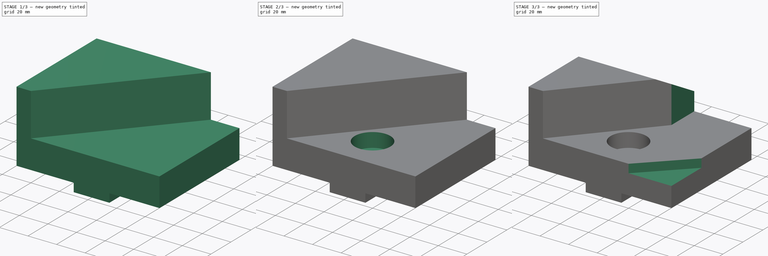
[diagram: build sequence overview — one tinted view per stage of 3, left to right]
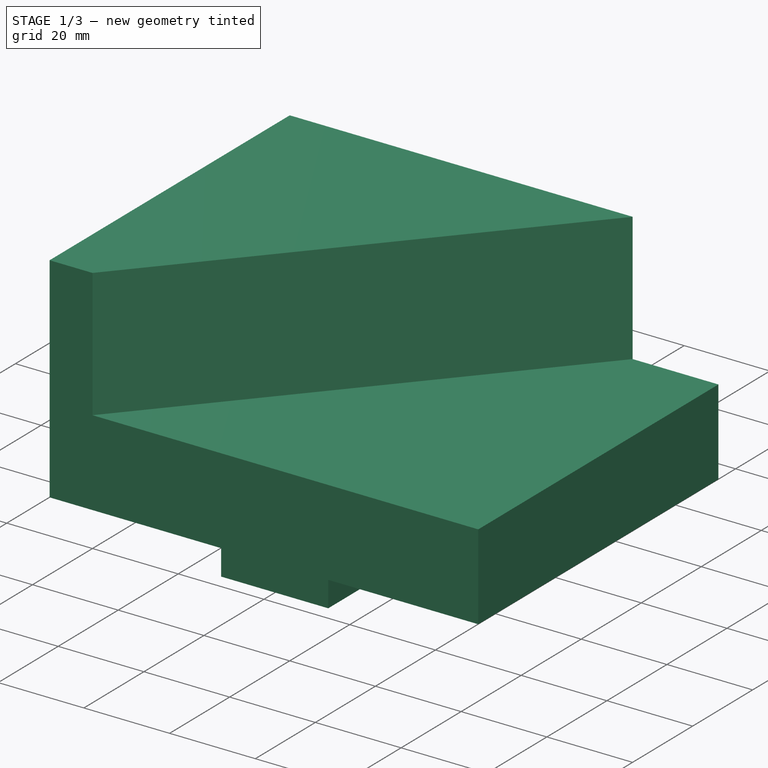
[diagram: stage 1 of 3 — iso view after this stage's code; geometry added in this stage tinted green]
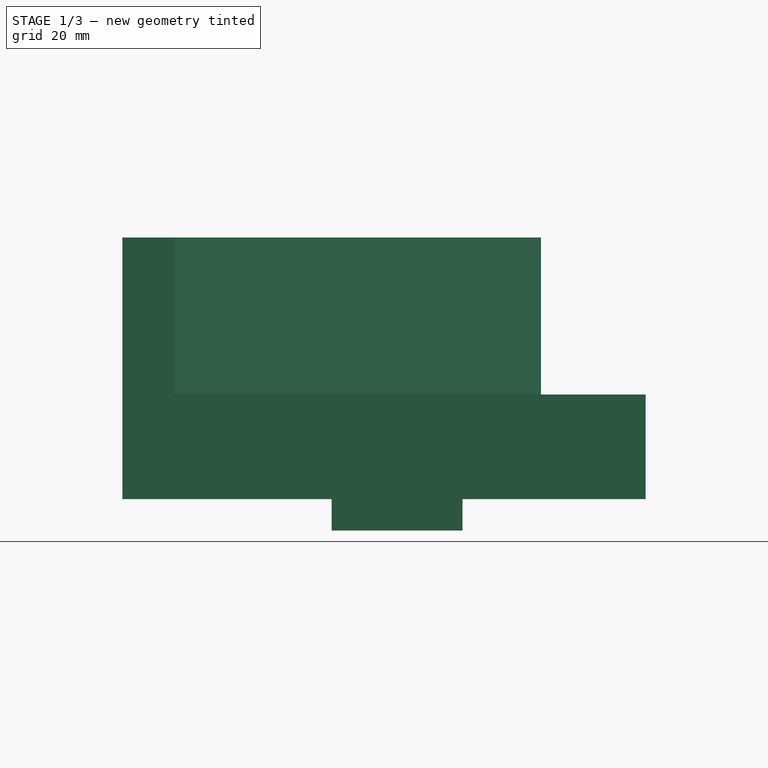
[diagram: stage 1 of 3 — front view after this stage's code; geometry added in this stage tinted green]
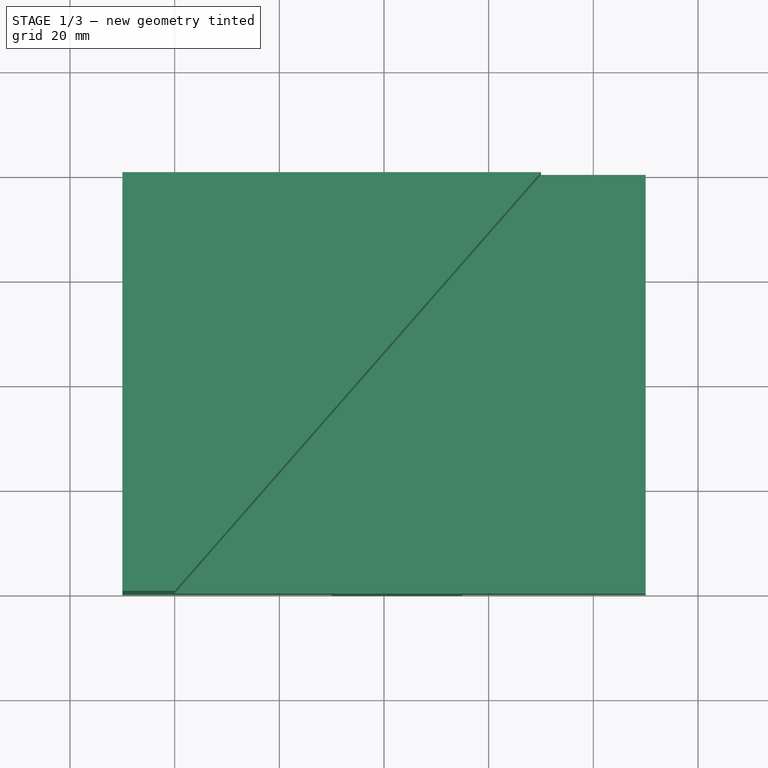
[diagram: stage 1 of 3 — top view after this stage's code; geometry added in this stage tinted green]
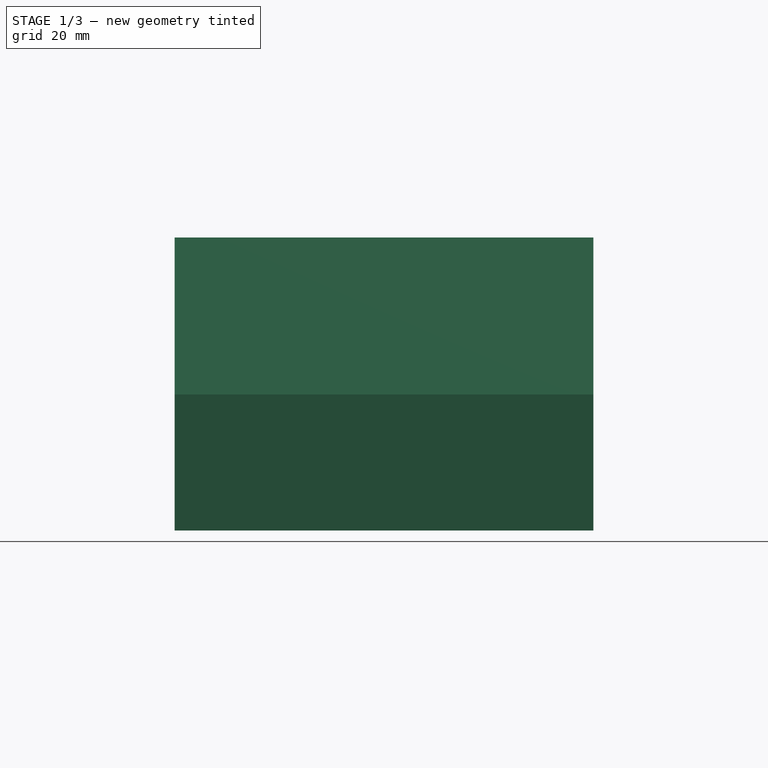
[diagram: stage 1 of 3 — right view after this stage's code; geometry added in this stage tinted green]
FCSTD DOCUMENT  (FreeCAD 0.16R)
Label: Ejer final 21
License: All rights reserved
LicenseURL: http://en.wikipedia.org/wiki/All_rights_reserved
objects: Sketcher::SketchObject×8, PartDesign::Pocket×7, PartDesign::Pad×1
note: 24 computed .brp shape members not serialized (recipe doc carries the construction recipe); baked Part::Feature solids carry a one-line shape summary decoded from their .brp

FEATURE [Sketcher::SketchObject] Sketch
  sketch-geometry (4):
    g0: LineSegment StartX=-50 StartY=-40 StartZ=0 EndX=50 EndY=-40 EndZ=0
    g1: LineSegment StartX=50 StartY=-40 StartZ=0 EndX=50 EndY=40 EndZ=0
    g2: LineSegment StartX=50 StartY=40 StartZ=0 EndX=-50 EndY=40 EndZ=0
    g3: LineSegment StartX=-50 StartY=40 StartZ=0 EndX=-50 EndY=-40 EndZ=0
  constraints (12):
    c: Coincident(g0,g1)
    c: Coincident(g1,g2)
    c: Coincident(g2,g3)
    c: Coincident(g3,g0)
    c: Horizontal(g0)
    c: Horizontal(g2)
    c: Vertical(g1)
    c: Vertical(g3)
    c: DistanceX(g0,g0) = 100
    c: DistanceY(g3,g3) = 80
    c: Symmetric(g1,g0,g-1)
    c: Symmetric(g0,g0,g-2)
FEATURE [PartDesign::Pad] Pad
  Length = 56
  Length2 = 100
  Sketch = -> Sketch
  Type = 0
FEATURE [Sketcher::SketchObject] Sketch001
  ExternalGeometry = -> [Pad]
  Placement = pos=(0,0,0) rot=(1,0,0;3.14159rad)
  Support = -> Pad [Face5]
  sketch-geometry (8):
    g0: LineSegment StartX=-50 StartY=47.7931 StartZ=0 EndX=-10 EndY=47.7931 EndZ=0
    g1: LineSegment StartX=-10 StartY=47.7931 StartZ=0 EndX=-10 EndY=-51.3825 EndZ=0
    g2: LineSegment StartX=-10 StartY=-51.3825 StartZ=0 EndX=-50 EndY=-51.3825 EndZ=0
    g3: LineSegment StartX=-50 StartY=-51.3825 StartZ=0 EndX=-50 EndY=47.7931 EndZ=0
    g4: LineSegment StartX=15 StartY=50.555 StartZ=0 EndX=50 EndY=50.555 EndZ=0
    g5: LineSegment StartX=50 StartY=50.555 StartZ=0 EndX=50 EndY=-52.3868 EndZ=0
    g6: LineSegment StartX=50 StartY=-52.3868 StartZ=0 EndX=15 EndY=-52.3868 EndZ=0
    g7: LineSegment StartX=15 StartY=-52.3868 StartZ=0 EndX=15 EndY=50.555 EndZ=0
  constraints (20):
    c: Coincident(g0,g1)
    c: Coincident(g1,g2)
    c: Coincident(g2,g3)
    c: Coincident(g3,g0)
    c: Horizontal(g0)
    c: Horizontal(g2)
    c: Vertical(g1)
    c: Vertical(g3)
    c: Coincident(g4,g5)
    c: Coincident(g5,g6)
    c: Coincident(g6,g7)
    c: Coincident(g7,g4)
    c: Horizontal(g4)
    c: Horizontal(g6)
    c: Vertical(g5)
    c: Vertical(g7)
    c: PointOnObject(g-3,g3)
    c: PointOnObject(g-3,g5)
    c: DistanceX(g0,g0) = 40
    c: DistanceX(g0,g4) = 25
FEATURE [PartDesign::Pocket] Pocket
  Length = 6
  Sketch = -> Sketch001
  Type = 0
FEATURE [Sketcher::SketchObject] Sketch002
  Placement = pos=(0,0,56) rot=(0,0,1;0rad)
  Support = -> Pocket [Face8]
  sketch-geometry (4):
    g0: LineSegment StartX=-40 StartY=-40 StartZ=0 EndX=30 EndY=40 EndZ=0
    g1: LineSegment StartX=30 StartY=40 StartZ=0 EndX=50 EndY=40 EndZ=0
    g2: LineSegment StartX=50 StartY=40 StartZ=0 EndX=50 EndY=-40 EndZ=0
    g3: LineSegment StartX=50 StartY=-40 StartZ=0 EndX=-40 EndY=-40 EndZ=0
  constraints (10):
    c: DistanceX(g0,g1) = 20
    c: Coincident(g0,g1)
    c: Horizontal(g1)
    c: Coincident(g1,g2)
    c: Coincident(g2,g3)
    c: Coincident(g3,g0)
    c: Horizontal(g3)
    c: DistanceX(g-1,g1) = 50
    c: DistanceY(g2,g-1) = 40
    c: DistanceX(g0,g-1) = 40
FEATURE [PartDesign::Pocket] Pocket001
  Length = 30
  Sketch = -> Sketch002
  Type = 0
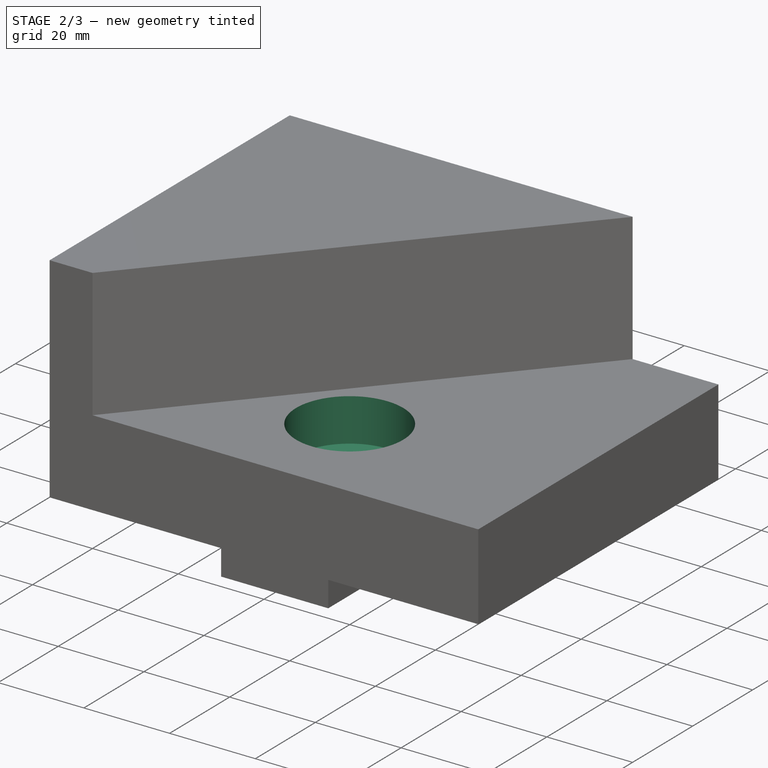
[diagram: stage 2 of 3 — iso view after this stage's code; geometry added in this stage tinted green]
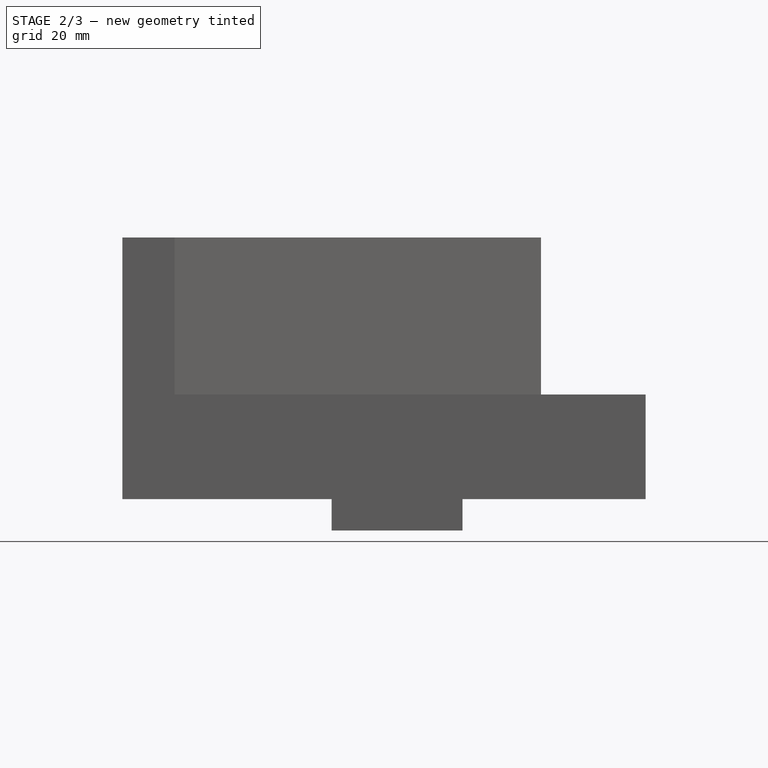
[diagram: stage 2 of 3 — front view after this stage's code; geometry added in this stage tinted green]
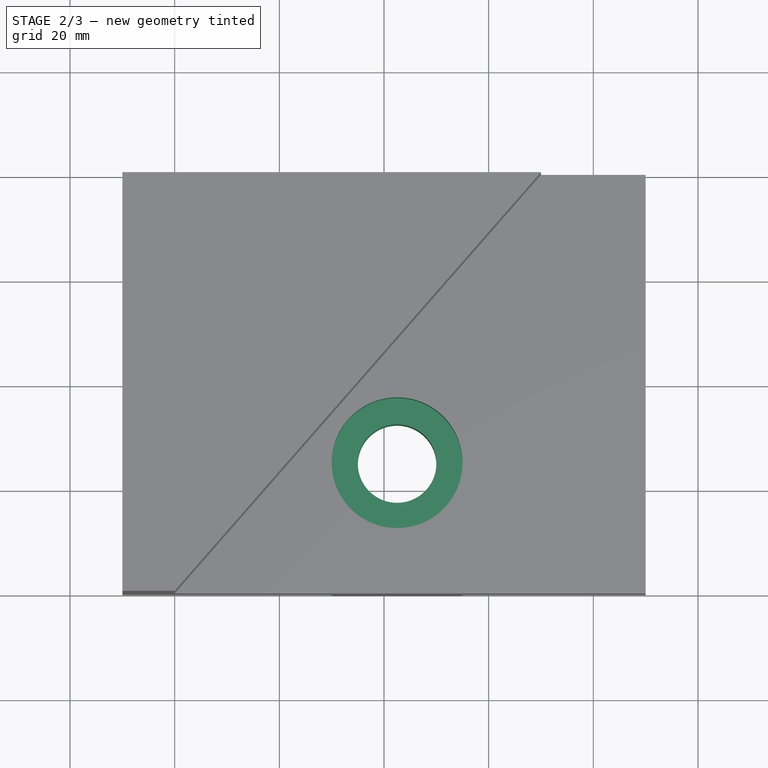
[diagram: stage 2 of 3 — top view after this stage's code; geometry added in this stage tinted green]
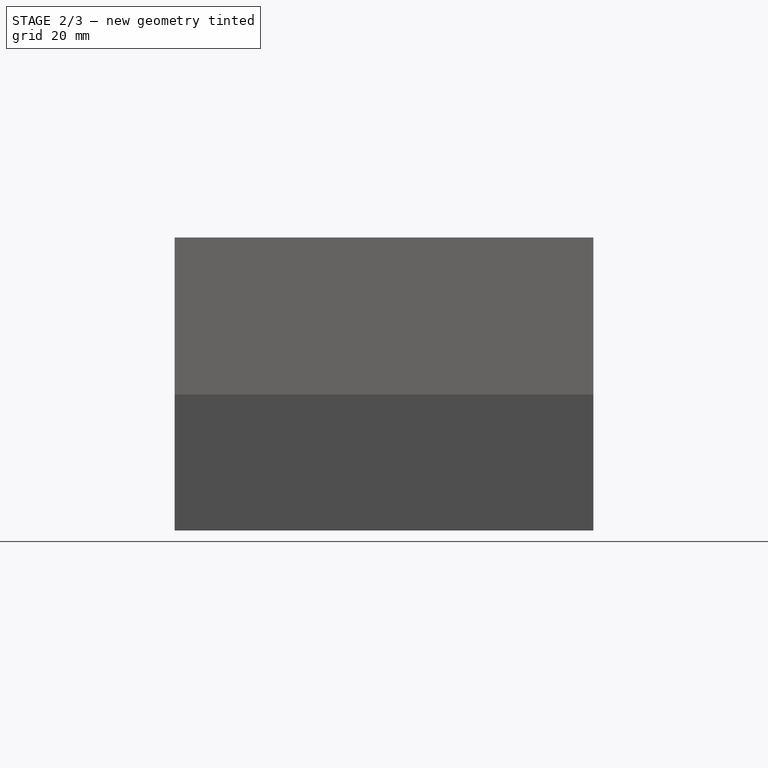
[diagram: stage 2 of 3 — right view after this stage's code; geometry added in this stage tinted green]
FEATURE [Sketcher::SketchObject] Sketch003
  ExternalGeometry = -> [Pocket001]
  Placement = pos=(0,0,26) rot=(0,0,1;0rad)
  Support = -> Pocket001 [Face7]
  sketch-geometry (1):
    g0: Circle CenterX=2.5 CenterY=-15 CenterZ=0 NormalX=0 NormalY=0 NormalZ=1 Radius=7.5
  constraints (3):
    c: Radius(g0) = 7.5
    c: DistanceX(g0,g-3) = 47.5
    c: DistanceY(g-3,g0) = 25
FEATURE [PartDesign::Pocket] Pocket002
  Length = 10
  Sketch = -> Sketch003
  Type = 1
FEATURE [Sketcher::SketchObject] Sketch004
  ExternalGeometry = -> [Pocket002]
  Placement = pos=(0,0,26) rot=(0,0,1;0rad)
  Support = -> Pocket002 [Face7]
  sketch-geometry (1):
    g0: Circle CenterX=2.5 CenterY=-15 CenterZ=0 NormalX=0 NormalY=0 NormalZ=1 Radius=12.5
  constraints (1):
    c: Radius(g0) = 12.5
FEATURE [PartDesign::Pocket] Pocket003
  Length = 10
  Sketch = -> Sketch004
  Type = 0
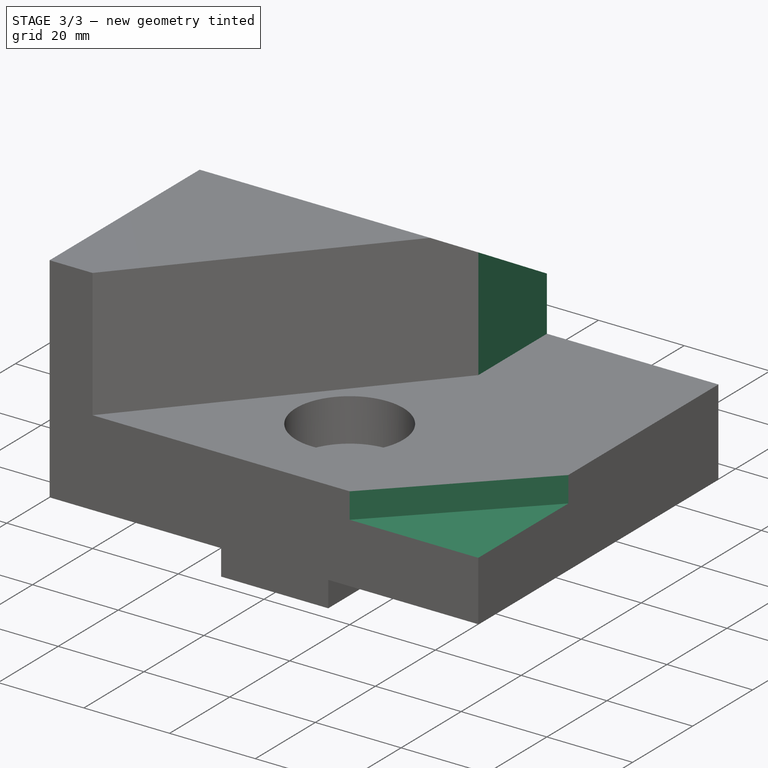
[diagram: stage 3 of 3 — iso view after this stage's code; geometry added in this stage tinted green]
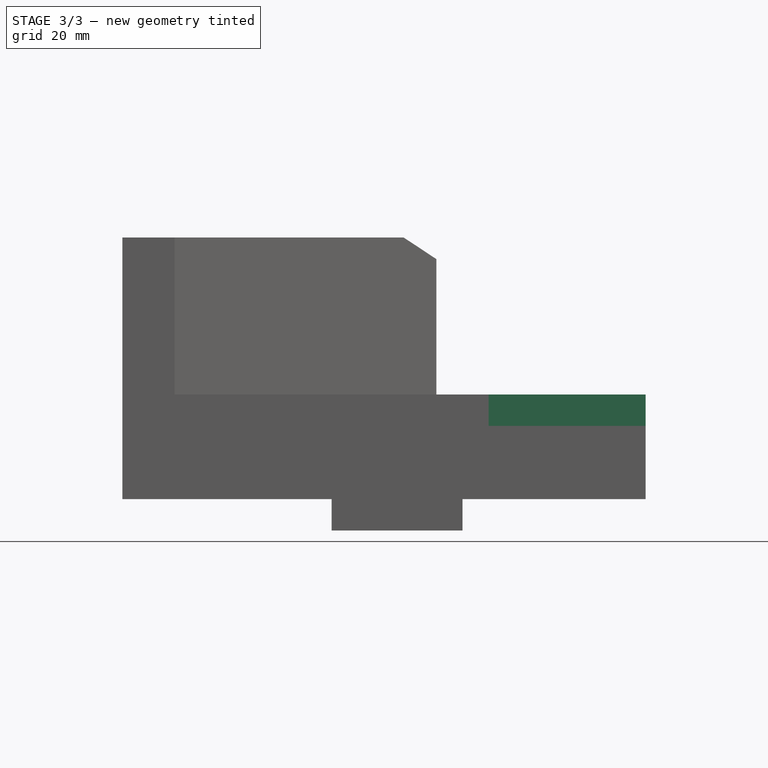
[diagram: stage 3 of 3 — front view after this stage's code; geometry added in this stage tinted green]
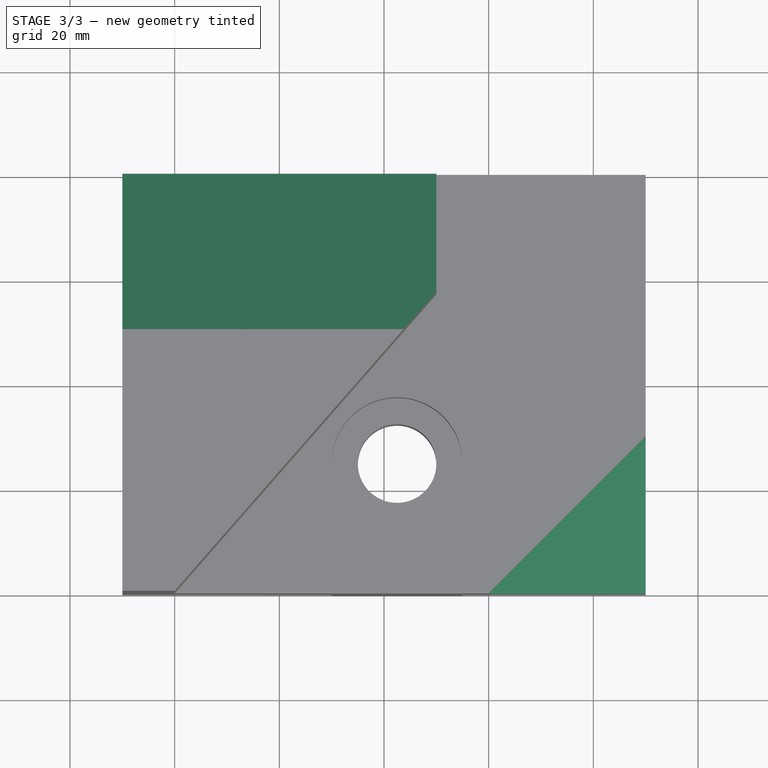
[diagram: stage 3 of 3 — top view after this stage's code; geometry added in this stage tinted green]
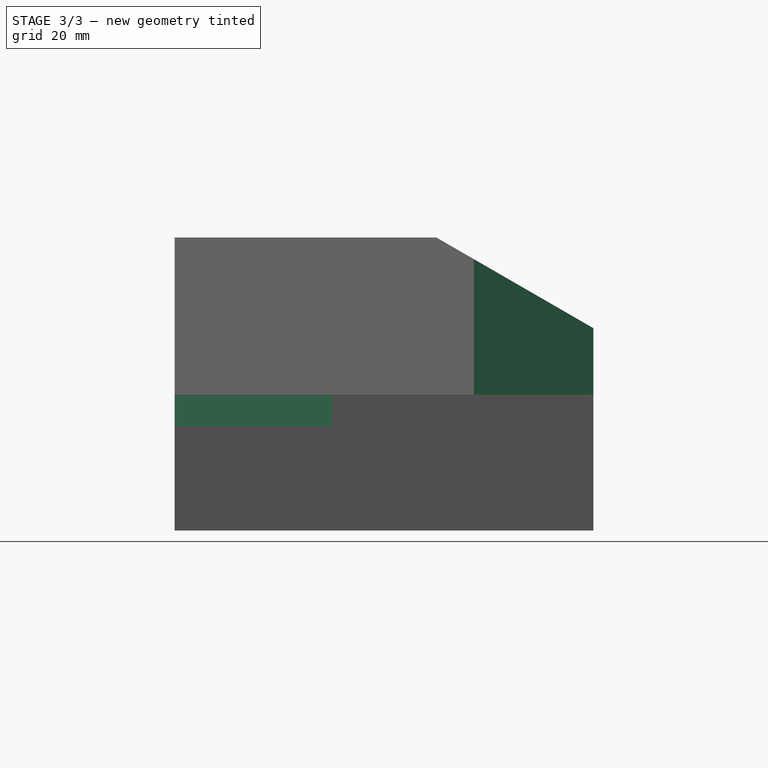
[diagram: stage 3 of 3 — right view after this stage's code; geometry added in this stage tinted green]
FEATURE [Sketcher::SketchObject] Sketch005
  ExternalGeometry = -> [Pocket003]
  Placement = pos=(0,0,26) rot=(0,0,1;0rad)
  Support = -> Pocket003 [Face7]
  sketch-geometry (4):
    g0: LineSegment [constr] StartX=50 StartY=-40 StartZ=0 EndX=20 EndY=-40 EndZ=0
    g1: LineSegment StartX=20 StartY=-40 StartZ=0 EndX=50 EndY=-10 EndZ=0
    g2: LineSegment StartX=50 StartY=-10 StartZ=0 EndX=50 EndY=-40 EndZ=0
    g3: LineSegment StartX=20 StartY=-40 StartZ=0 EndX=50 EndY=-40 EndZ=0
  constraints (10):
    c: Coincident(g0,g-3)
    c: PointOnObject(g0,g-3)
    c: DistanceX(g0,g0) = 30
    c: Coincident(g1,g0)
    c: Angle(g1) = 0.785398
    c: PointOnObject(g1,g-4)
    c: Coincident(g2,g1)
    c: Coincident(g2,g0)
    c: Coincident(g3,g0)
    c: Coincident(g3,g0)
FEATURE [PartDesign::Pocket] Pocket004
  Length = 6
  Sketch = -> Sketch005
  Type = 0
FEATURE [Sketcher::SketchObject] Sketch006
  ExternalGeometry = -> [Pocket004]
  Placement = pos=(-50,0,0) rot=(0.57735,-0.57735,-0.57735;2.0944rad)
  Support = -> Pocket004 [Face11]
  sketch-geometry (3):
    g0: LineSegment StartX=-40 StartY=38.6795 StartZ=0 EndX=-40 EndY=56 EndZ=0
    g1: LineSegment StartX=-40 StartY=56 StartZ=0 EndX=-10 EndY=56 EndZ=0
    g2: LineSegment StartX=-10 StartY=56 StartZ=0 EndX=-40 EndY=38.6795 EndZ=0
  constraints (8):
    c: DistanceX(g-3,g1) = 30
    c: Coincident(g2,g1)
    c: Coincident(g2,g0)
    c: Angle(g1,g2) = 0.523599
    c: Coincident(g0,g1)
    c: Coincident(g0,g-3)
    c: PointOnObject(g1,g-3)
    c: Vertical(g0)
FEATURE [PartDesign::Pocket] Pocket005
  Length = 5
  Sketch = -> Sketch006
  Type = 1
FEATURE [Sketcher::SketchObject] Sketch007
  ExternalGeometry = -> [Pocket005]
  Placement = pos=(0,40,0) rot=(0,0.707107,0.707107;3.14159rad)
  Support = -> Pocket005 [Face14]
  sketch-geometry (4):
    g0: LineSegment StartX=-10 StartY=57.7935 StartZ=0 EndX=-10 EndY=26 EndZ=0
    g1: LineSegment StartX=-10 StartY=26 StartZ=0 EndX=-30 EndY=26 EndZ=0
    g2: LineSegment StartX=-30 StartY=26 StartZ=0 EndX=-30 EndY=57.7935 EndZ=0
    g3: LineSegment StartX=-30 StartY=57.7935 StartZ=0 EndX=-10 EndY=57.7935 EndZ=0
  constraints (10):
    c: Coincident(g0,g1)
    c: Coincident(g1,g2)
    c: Horizontal(g1)
    c: Vertical(g0)
    c: Vertical(g2)
    c: DistanceX(g1,g1) = 20
    c: Coincident(g1,g-3)
    c: Coincident(g3,g0)
    c: Horizontal(g3)
    c: Coincident(g2,g3)
FEATURE [PartDesign::Pocket] Pocket006
  Length = 5
  Sketch = -> Sketch007
  Type = 1
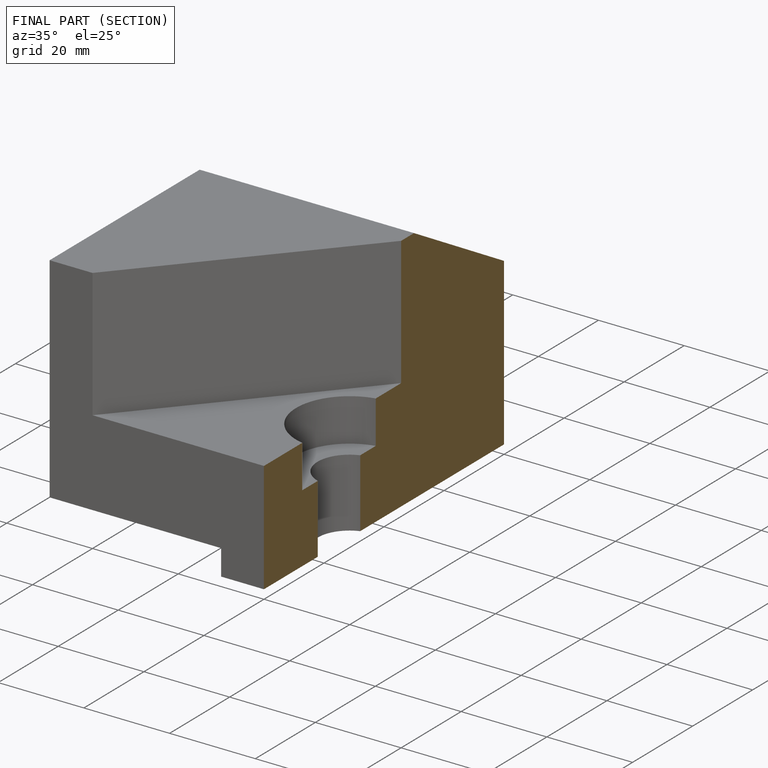
[diagram: finished part — half-section view (interior)]
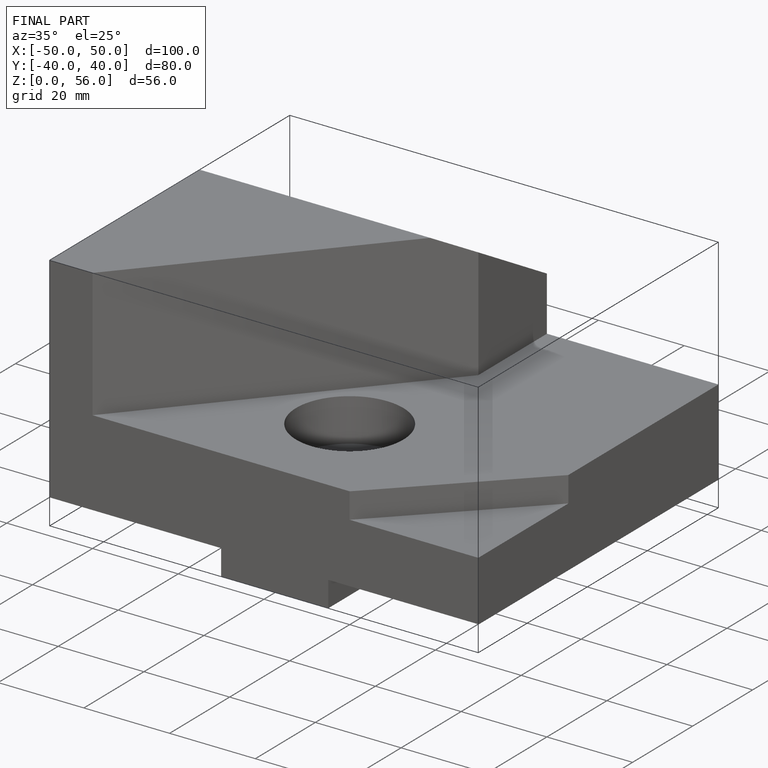
[diagram: finished part — iso view with bounding-box wireframe]
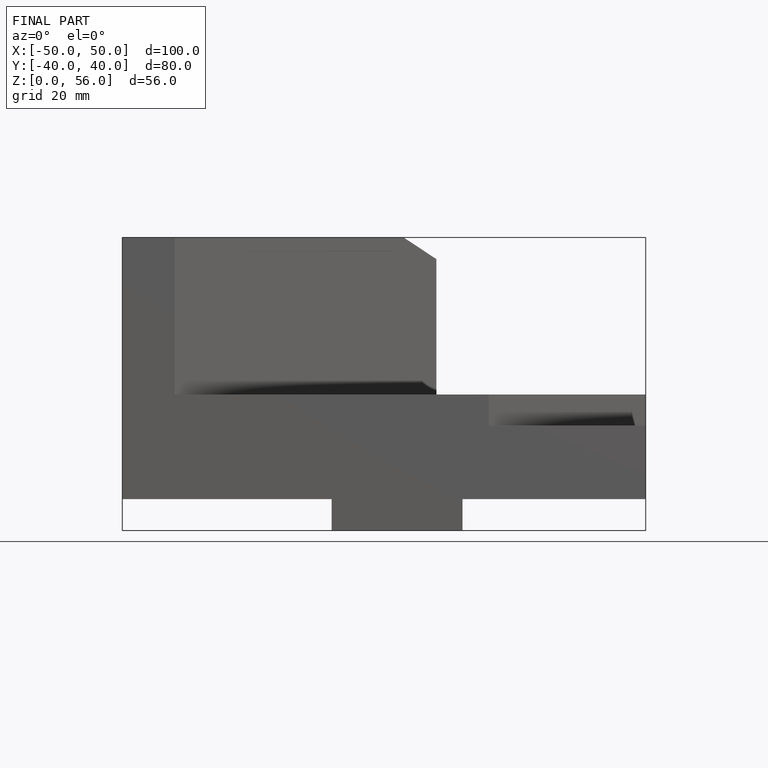
[diagram: finished part — front view with bounding-box wireframe]
